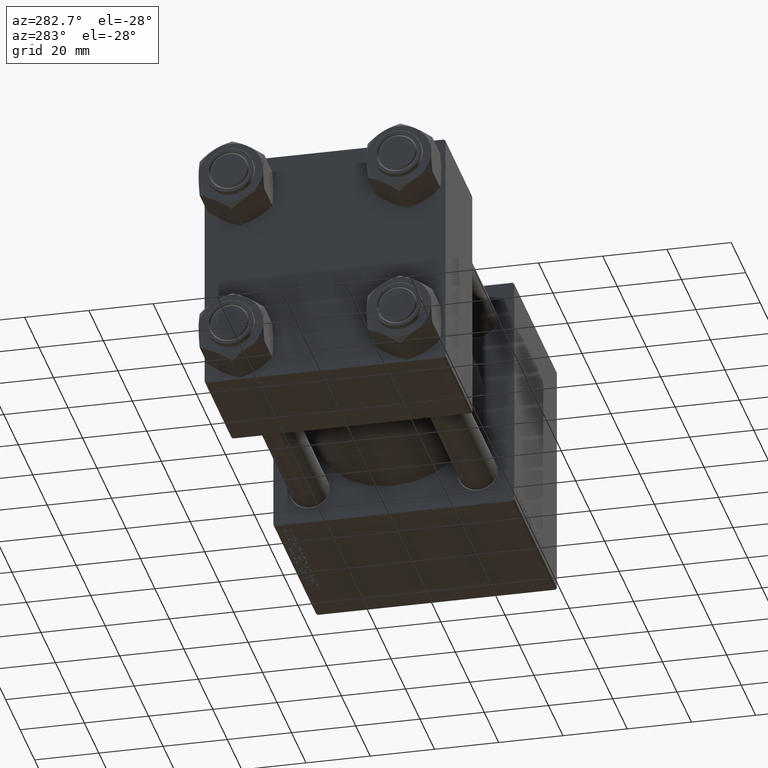
[diagram: clean part render]
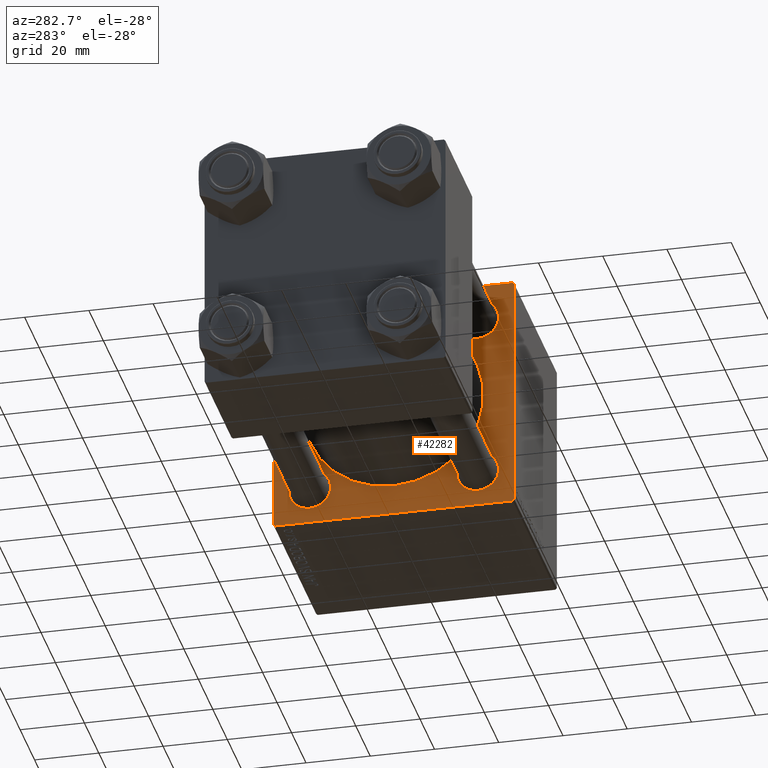
[diagram: same view with one face highlighted and labeled with its STEP entity id]
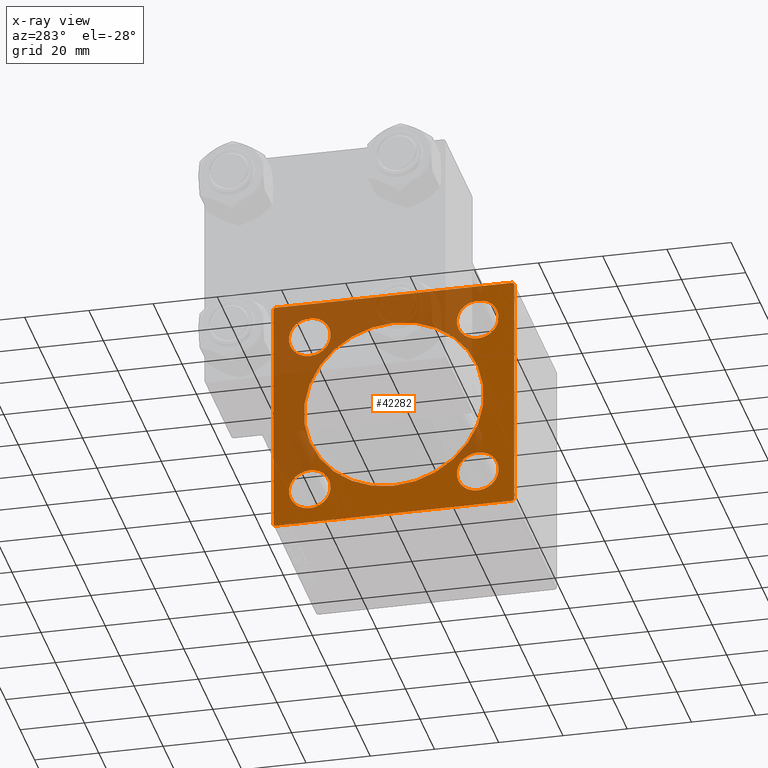
[diagram: x-ray of the same camera — body ghosted, the highlighted face saturated]
A machine part, auxiliary view. The second image highlights one B-rep face of the part: STEP entity #42282.
The next image is the same camera in x-ray: the body ghosted, the highlighted face saturated — about 46% of this face is hidden behind the body in this view.
In plain terms, the highlighted planar face has unit normal (-1, 0, 0).
Its self-contained STEP definition (entity closure, byte-faithful):
#442 = AXIS2_PLACEMENT_3D ( 'NONE', #32467, #1533, #4592 ) ;
#559 = EDGE_CURVE ( 'NONE', #25161, #35622, #6839, .T. ) ;
#842 = VERTEX_POINT ( 'NONE', #46981 ) ;
#1533 = DIRECTION ( 'NONE',  ( 1.000000000000000000, 0.000000000000000000, -0.000000000000000000 ) ) ;
#2417 = CARTESIAN_POINT ( 'NONE',  ( 95.00000000000000000, 37.00000000000000000, 37.49999999999999289 ) ) ;
#2424 = ORIENTED_EDGE ( 'NONE', *, *, #23786, .T. ) ;
#2425 = EDGE_CURVE ( 'NONE', #24052, #35199, #36038, .T. ) ;
#3076 = ORIENTED_EDGE ( 'NONE', *, *, #21900, .T. ) ;
#3310 = VECTOR ( 'NONE', #8860, 1000.000000000000000 ) ;
#3578 = DIRECTION ( 'NONE',  ( -1.000000000000000000, -0.000000000000000000, 0.000000000000000000 ) ) ;
#3875 = CIRCLE ( 'NONE', #17654, 6.500000000000015987 ) ;
#4592 = DIRECTION ( 'NONE',  ( 0.000000000000000000, 0.000000000000000000, 1.000000000000000000 ) ) ;
#4754 = DIRECTION ( 'NONE',  ( 0.000000000000000000, 0.000000000000000000, 1.000000000000000000 ) ) ;
#4826 = VERTEX_POINT ( 'NONE', #47166 ) ;
#4871 = CIRCLE ( 'NONE', #41317, 6.500000000000015987 ) ;
#5147 = ORIENTED_EDGE ( 'NONE', *, *, #46784, .T. ) ;
#5152 = VERTEX_POINT ( 'NONE', #6258 ) ;
#5206 = DIRECTION ( 'NONE',  ( 1.000000000000000000, 0.000000000000000000, 0.000000000000000000 ) ) ;
#5334 = ORIENTED_EDGE ( 'NONE', *, *, #9422, .T. ) ;
#5580 = CARTESIAN_POINT ( 'NONE',  ( 95.00000000000000000, 37.50000000000000000, 37.49999999999999289 ) ) ;
#6258 = CARTESIAN_POINT ( 'NONE',  ( 95.00000000000000000, -26.14999999999999147, -19.64999999999999503 ) ) ;
#6342 = LINE ( 'NONE', #33719, #29910 ) ;
#6839 = CIRCLE ( 'NONE', #42500, 28.00000000000000000 ) ;
#6925 = CIRCLE ( 'NONE', #48285, 6.500000000000008882 ) ;
#6999 = LINE ( 'NONE', #41769, #22339 ) ;
#7393 = CARTESIAN_POINT ( 'NONE',  ( 95.00000000000000000, -26.14999999999999147, -32.65000000000002700 ) ) ;
#7430 = LINE ( 'NONE', #11217, #12943 ) ;
#7631 = DIRECTION ( 'NONE',  ( 0.000000000000000000, 0.000000000000000000, 1.000000000000000000 ) ) ;
#7672 = CARTESIAN_POINT ( 'NONE',  ( 95.00000000000000000, -36.99999999999997158, 37.49999999999997868 ) ) ;
#8009 = VERTEX_POINT ( 'NONE', #7393 ) ;
#8062 = CARTESIAN_POINT ( 'NONE',  ( 95.00000000000000000, 26.14999999999999858, -26.15000000000000213 ) ) ;
#8115 = VECTOR ( 'NONE', #8992, 1000.000000000000000 ) ;
#8455 = VECTOR ( 'NONE', #29770, 1000.000000000000114 ) ;
#8860 = DIRECTION ( 'NONE',  ( 0.000000000000000000, -0.7071067811865671127, 0.7071067811865279218 ) ) ;
#8884 = DIRECTION ( 'NONE',  ( 0.000000000000000000, 0.000000000000000000, -1.000000000000000000 ) ) ;
#8992 = DIRECTION ( 'NONE',  ( 0.000000000000000000, -1.000000000000000000, -1.850371707708594316E-16 ) ) ;
#9304 = CARTESIAN_POINT ( 'NONE',  ( 95.00000000000000000, -26.14999999999999147, 32.65000000000003411 ) ) ;
#9327 = CIRCLE ( 'NONE', #442, 6.500000000000008882 ) ;
#9422 = EDGE_CURVE ( 'NONE', #8009, #5152, #3875, .T. ) ;
#9849 = ORIENTED_EDGE ( 'NONE', *, *, #559, .T. ) ;
#10594 = DIRECTION ( 'NONE',  ( 0.000000000000000000, 0.000000000000000000, 1.000000000000000000 ) ) ;
#10617 = ORIENTED_EDGE ( 'NONE', *, *, #23202, .T. ) ;
#11165 = FACE_BOUND ( 'NONE', #45089, .T. ) ;
#11217 = CARTESIAN_POINT ( 'NONE',  ( 95.00000000000000000, 37.50000000000000000, -37.50000000000000000 ) ) ;
#11290 = AXIS2_PLACEMENT_3D ( 'NONE', #8062, #20213, #4754 ) ;
#11422 = FACE_BOUND ( 'NONE', #34577, .T. ) ;
#11716 = AXIS2_PLACEMENT_3D ( 'NONE', #30536, #46041, #31535 ) ;
#12177 = PLANE ( 'NONE',  #30060 ) ;
#12391 = EDGE_CURVE ( 'NONE', #35622, #25161, #39668, .T. ) ;
#12647 = CARTESIAN_POINT ( 'NONE',  ( 95.00000000000000000, -37.24999999999896261, -37.25000000000103029 ) ) ;
#12903 = DIRECTION ( 'NONE',  ( 1.000000000000000000, 0.000000000000000000, -0.000000000000000000 ) ) ;
#12943 = VECTOR ( 'NONE', #23144, 1000.000000000000000 ) ;
#13170 = VERTEX_POINT ( 'NONE', #17263 ) ;
#13278 = EDGE_CURVE ( 'NONE', #18767, #27357, #34998, .T. ) ;
#14374 = VERTEX_POINT ( 'NONE', #33438 ) ;
#14380 = EDGE_LOOP ( 'NONE', ( #16324, #10617 ) ) ;
#14491 = EDGE_CURVE ( 'NONE', #4826, #14374, #4871, .T. ) ;
#14568 = EDGE_CURVE ( 'NONE', #14374, #4826, #33173, .T. ) ;
#14620 = CARTESIAN_POINT ( 'NONE',  ( 95.00000000000000000, -36.99999999999998579, -37.50000000000000000 ) ) ;
#15796 = VECTOR ( 'NONE', #16679, 999.9999999999998863 ) ;
#16324 = ORIENTED_EDGE ( 'NONE', *, *, #24121, .T. ) ;
#16665 = CIRCLE ( 'NONE', #20719, 6.500000000000015987 ) ;
#16679 = DIRECTION ( 'NONE',  ( -0.000000000000000000, -0.7071067811865425767, -0.7071067811865525687 ) ) ;
#16838 = LINE ( 'NONE', #35371, #8115 ) ;
#17111 = DIRECTION ( 'NONE',  ( 0.000000000000000000, 0.000000000000000000, 1.000000000000000000 ) ) ;
#17263 = CARTESIAN_POINT ( 'NONE',  ( 95.00000000000000000, 26.14999999999999858, 19.64999999999999147 ) ) ;
#17654 = AXIS2_PLACEMENT_3D ( 'NONE', #28621, #31677, #47193 ) ;
#17844 = VERTEX_POINT ( 'NONE', #47912 ) ;
#18767 = VERTEX_POINT ( 'NONE', #14620 ) ;
#19602 = VERTEX_POINT ( 'NONE', #45623 ) ;
#19850 = CARTESIAN_POINT ( 'NONE',  ( 95.00000000000000000, -26.14999999999999147, 19.64999999999999147 ) ) ;
#20213 = DIRECTION ( 'NONE',  ( 1.000000000000000000, 0.000000000000000000, -0.000000000000000000 ) ) ;
#20288 = ORIENTED_EDGE ( 'NONE', *, *, #46628, .F. ) ;
#20489 = ORIENTED_EDGE ( 'NONE', *, *, #13278, .T. ) ;
#20719 = AXIS2_PLACEMENT_3D ( 'NONE', #44032, #24723, #17111 ) ;
#21029 = ORIENTED_EDGE ( 'NONE', *, *, #24966, .T. ) ;
#21338 = DIRECTION ( 'NONE',  ( 0.000000000000000000, 0.000000000000000000, -1.000000000000000000 ) ) ;
#21893 = CARTESIAN_POINT ( 'NONE',  ( 95.00000000000000000, 37.25000000000000000, 37.25000000000000000 ) ) ;
#21900 = EDGE_CURVE ( 'NONE', #44854, #34791, #40958, .T. ) ;
#22339 = VECTOR ( 'NONE', #29595, 1000.000000000000114 ) ;
#23111 = CIRCLE ( 'NONE', #39326, 6.500000000000015987 ) ;
#23144 = DIRECTION ( 'NONE',  ( 0.000000000000000000, -1.000000000000000000, 0.000000000000000000 ) ) ;
#23202 = EDGE_CURVE ( 'NONE', #13170, #19602, #9327, .T. ) ;
#23352 = CARTESIAN_POINT ( 'NONE',  ( 95.00000000000000000, 0.000000000000000000, 0.000000000000000000 ) ) ;
#23522 = EDGE_CURVE ( 'NONE', #17844, #49962, #35462, .T. ) ;
#23678 = ORIENTED_EDGE ( 'NONE', *, *, #25162, .T. ) ;
#23786 = EDGE_CURVE ( 'NONE', #5152, #8009, #23111, .T. ) ;
#24052 = VERTEX_POINT ( 'NONE', #9304 ) ;
#24121 = EDGE_CURVE ( 'NONE', #19602, #13170, #6925, .T. ) ;
#24224 = CARTESIAN_POINT ( 'NONE',  ( 95.00000000000000000, 8.269258236473776482E-16, -28.00000000000000000 ) ) ;
#24543 = EDGE_CURVE ( 'NONE', #34791, #17844, #40345, .T. ) ;
#24723 = DIRECTION ( 'NONE',  ( 1.000000000000000000, 0.000000000000000000, -0.000000000000000000 ) ) ;
#24966 = EDGE_CURVE ( 'NONE', #842, #32647, #6999, .T. ) ;
#25161 = VERTEX_POINT ( 'NONE', #24224 ) ;
#25162 = EDGE_CURVE ( 'NONE', #35199, #24052, #16665, .T. ) ;
#25773 = CARTESIAN_POINT ( 'NONE',  ( 95.00000000000000000, 37.50000000000000000, 36.99999999999999289 ) ) ;
#25846 = AXIS2_PLACEMENT_3D ( 'NONE', #44959, #41142, #21338 ) ;
#25979 = EDGE_LOOP ( 'NONE', ( #5147, #20489, #34475, #21029, #20288, #3076, #26074, #36292 ) ) ;
#26074 = ORIENTED_EDGE ( 'NONE', *, *, #24543, .T. ) ;
#27357 = VERTEX_POINT ( 'NONE', #43737 ) ;
#28621 = CARTESIAN_POINT ( 'NONE',  ( 95.00000000000000000, -26.14999999999999147, -26.15000000000000924 ) ) ;
#28758 = ORIENTED_EDGE ( 'NONE', *, *, #14491, .T. ) ;
#29595 = DIRECTION ( 'NONE',  ( -0.000000000000000000, 0.7071067811865474617, 0.7071067811865474617 ) ) ;
#29770 = DIRECTION ( 'NONE',  ( 0.000000000000000000, 0.7071067811865474617, -0.7071067811865474617 ) ) ;
#29910 = VECTOR ( 'NONE', #37308, 1000.000000000000000 ) ;
#30060 = AXIS2_PLACEMENT_3D ( 'NONE', #23352, #3578, #7631 ) ;
#30093 = CARTESIAN_POINT ( 'NONE',  ( 95.00000000000000000, 37.00000000000000000, -37.50000000000000000 ) ) ;
#30378 = DIRECTION ( 'NONE',  ( 1.000000000000000000, 0.000000000000000000, -0.000000000000000000 ) ) ;
#30536 = CARTESIAN_POINT ( 'NONE',  ( 95.00000000000000000, -26.14999999999999147, 26.15000000000000924 ) ) ;
#30554 = ORIENTED_EDGE ( 'NONE', *, *, #14568, .T. ) ;
#31535 = DIRECTION ( 'NONE',  ( 0.000000000000000000, 0.000000000000000000, 1.000000000000000000 ) ) ;
#31677 = DIRECTION ( 'NONE',  ( 1.000000000000000000, 0.000000000000000000, -0.000000000000000000 ) ) ;
#32330 = CARTESIAN_POINT ( 'NONE',  ( 95.00000000000000000, -2.602085213965210642E-15, 0.000000000000000000 ) ) ;
#32467 = CARTESIAN_POINT ( 'NONE',  ( 95.00000000000000000, 26.14999999999999858, 26.15000000000000213 ) ) ;
#32585 = CARTESIAN_POINT ( 'NONE',  ( 95.00000000000000000, -2.602085213965210642E-15, 28.00000000000000000 ) ) ;
#32647 = VERTEX_POINT ( 'NONE', #7672 ) ;
#32771 = EDGE_LOOP ( 'NONE', ( #30554, #28758 ) ) ;
#33173 = CIRCLE ( 'NONE', #11290, 6.500000000000015987 ) ;
#33438 = CARTESIAN_POINT ( 'NONE',  ( 95.00000000000000000, 26.14999999999999858, -19.64999999999998792 ) ) ;
#33719 = CARTESIAN_POINT ( 'NONE',  ( 95.00000000000000000, -37.50000000000000000, 37.49999999999997868 ) ) ;
#34475 = ORIENTED_EDGE ( 'NONE', *, *, #44320, .F. ) ;
#34577 = EDGE_LOOP ( 'NONE', ( #34958, #9849 ) ) ;
#34693 = CARTESIAN_POINT ( 'NONE',  ( 95.00000000000000000, 26.14999999999999858, -26.15000000000000213 ) ) ;
#34791 = VERTEX_POINT ( 'NONE', #25773 ) ;
#34958 = ORIENTED_EDGE ( 'NONE', *, *, #12391, .T. ) ;
#34998 = LINE ( 'NONE', #12647, #3310 ) ;
#35029 = FACE_BOUND ( 'NONE', #48261, .T. ) ;
#35199 = VERTEX_POINT ( 'NONE', #19850 ) ;
#35269 = FACE_BOUND ( 'NONE', #14380, .T. ) ;
#35371 = CARTESIAN_POINT ( 'NONE',  ( 95.00000000000000000, 37.50000000000000000, 37.49999999999999289 ) ) ;
#35462 = LINE ( 'NONE', #39052, #15796 ) ;
#35516 = FACE_OUTER_BOUND ( 'NONE', #25979, .T. ) ;
#35622 = VERTEX_POINT ( 'NONE', #32585 ) ;
#36007 = DIRECTION ( 'NONE',  ( 0.000000000000000000, 0.000000000000000000, 1.000000000000000000 ) ) ;
#36038 = CIRCLE ( 'NONE', #11716, 6.500000000000015987 ) ;
#36292 = ORIENTED_EDGE ( 'NONE', *, *, #23522, .T. ) ;
#36889 = VECTOR ( 'NONE', #8884, 1000.000000000000000 ) ;
#37308 = DIRECTION ( 'NONE',  ( 0.000000000000000000, -9.251858538542972814E-17, -1.000000000000000000 ) ) ;
#39052 = CARTESIAN_POINT ( 'NONE',  ( 95.00000000000000000, 37.25000000000026290, -37.24999999999974420 ) ) ;
#39326 = AXIS2_PLACEMENT_3D ( 'NONE', #43645, #12903, #36007 ) ;
#39668 = CIRCLE ( 'NONE', #25846, 28.00000000000000000 ) ;
#40275 = DIRECTION ( 'NONE',  ( 0.000000000000000000, 0.000000000000000000, 1.000000000000000000 ) ) ;
#40345 = LINE ( 'NONE', #5580, #36889 ) ;
#40958 = LINE ( 'NONE', #21893, #8455 ) ;
#41142 = DIRECTION ( 'NONE',  ( 1.000000000000000000, 0.000000000000000000, 0.000000000000000000 ) ) ;
#41317 = AXIS2_PLACEMENT_3D ( 'NONE', #34693, #30378, #10594 ) ;
#41558 = ORIENTED_EDGE ( 'NONE', *, *, #2425, .T. ) ;
#41769 = CARTESIAN_POINT ( 'NONE',  ( 95.00000000000000000, -37.24999999999997158, 37.24999999999997158 ) ) ;
#42282 = ADVANCED_FACE ( 'NONE', ( #35029, #35269, #45965, #11165, #11422, #35516 ), #12177, .T. ) ;
#42500 = AXIS2_PLACEMENT_3D ( 'NONE', #32330, #5206, #47853 ) ;
#43337 = CARTESIAN_POINT ( 'NONE',  ( 95.00000000000000000, 26.14999999999999858, 26.15000000000000213 ) ) ;
#43587 = DIRECTION ( 'NONE',  ( 1.000000000000000000, 0.000000000000000000, -0.000000000000000000 ) ) ;
#43645 = CARTESIAN_POINT ( 'NONE',  ( 95.00000000000000000, -26.14999999999999147, -26.15000000000000924 ) ) ;
#43737 = CARTESIAN_POINT ( 'NONE',  ( 95.00000000000000000, -37.50000000000000711, -37.00000000000000711 ) ) ;
#44032 = CARTESIAN_POINT ( 'NONE',  ( 95.00000000000000000, -26.14999999999999147, 26.15000000000000924 ) ) ;
#44320 = EDGE_CURVE ( 'NONE', #842, #27357, #6342, .T. ) ;
#44854 = VERTEX_POINT ( 'NONE', #2417 ) ;
#44959 = CARTESIAN_POINT ( 'NONE',  ( 95.00000000000000000, -2.602085213965210642E-15, 0.000000000000000000 ) ) ;
#45089 = EDGE_LOOP ( 'NONE', ( #2424, #5334 ) ) ;
#45623 = CARTESIAN_POINT ( 'NONE',  ( 95.00000000000000000, 26.14999999999999858, 32.65000000000001990 ) ) ;
#45965 = FACE_BOUND ( 'NONE', #32771, .T. ) ;
#46041 = DIRECTION ( 'NONE',  ( 1.000000000000000000, 0.000000000000000000, -0.000000000000000000 ) ) ;
#46628 = EDGE_CURVE ( 'NONE', #44854, #32647, #16838, .T. ) ;
#46784 = EDGE_CURVE ( 'NONE', #49962, #18767, #7430, .T. ) ;
#46981 = CARTESIAN_POINT ( 'NONE',  ( 95.00000000000000000, -37.50000000000000000, 36.99999999999995026 ) ) ;
#47166 = CARTESIAN_POINT ( 'NONE',  ( 95.00000000000000000, 26.14999999999999858, -32.65000000000001990 ) ) ;
#47193 = DIRECTION ( 'NONE',  ( 0.000000000000000000, 0.000000000000000000, 1.000000000000000000 ) ) ;
#47853 = DIRECTION ( 'NONE',  ( 0.000000000000000000, 0.000000000000000000, -1.000000000000000000 ) ) ;
#47912 = CARTESIAN_POINT ( 'NONE',  ( 95.00000000000000000, 37.50000000000000000, -36.99999999999999289 ) ) ;
#48261 = EDGE_LOOP ( 'NONE', ( #41558, #23678 ) ) ;
#48285 = AXIS2_PLACEMENT_3D ( 'NONE', #43337, #43587, #40275 ) ;
#49962 = VERTEX_POINT ( 'NONE', #30093 ) ;